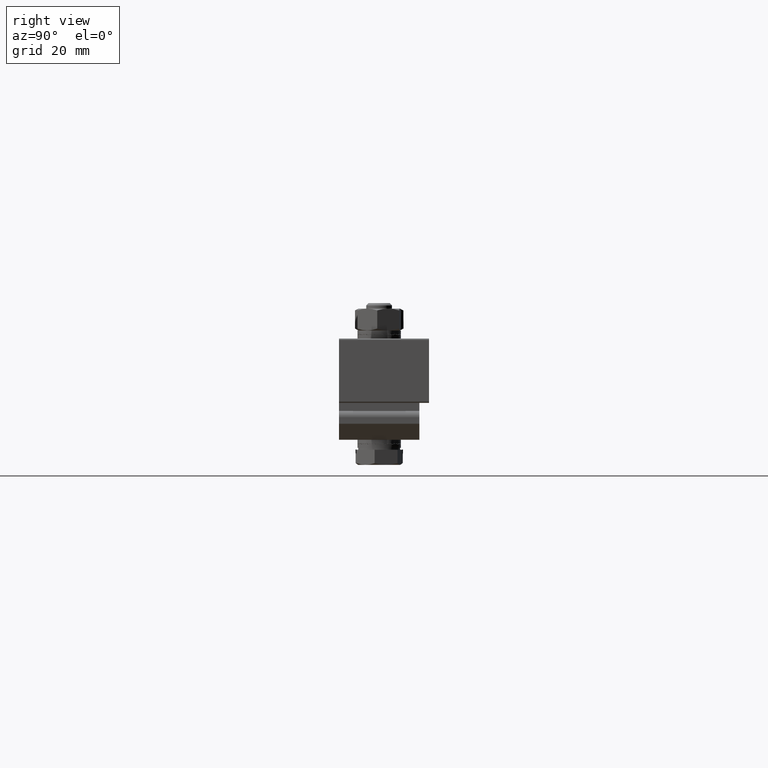
[diagram: clean part render]
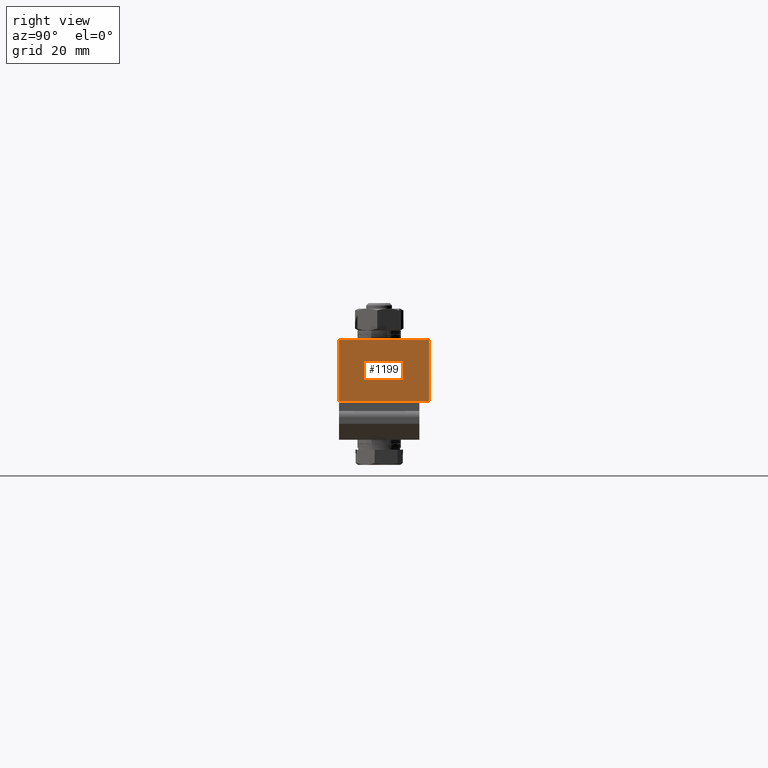
[diagram: same view with one face highlighted and labeled with its STEP entity id]
A machine part, right view. The second image highlights one B-rep face of the part: STEP entity #1199.
In plain terms, the highlighted planar face has unit normal (-1, 0, 0).
Its self-contained STEP definition (entity closure, byte-faithful):
#325 = VERTEX_POINT ( 'NONE', #6448 ) ;
#466 = LINE ( 'NONE', #8624, #9668 ) ;
#843 = CARTESIAN_POINT ( 'NONE',  ( 110.0000000000000000, 15.50000000000000000, 3.000000000000000000 ) ) ;
#984 = EDGE_CURVE ( 'NONE', #11560, #9885, #9301, .T. ) ;
#1097 = EDGE_LOOP ( 'NONE', ( #2235, #20172, #10104, #14325 ) ) ;
#1199 = ADVANCED_FACE ( 'NONE', ( #19142 ), #19918, .F. ) ;
#1359 = LINE ( 'NONE', #12089, #17510 ) ;
#2235 = ORIENTED_EDGE ( 'NONE', *, *, #984, .T. ) ;
#3996 = DIRECTION ( 'NONE',  ( 0.0000000000000000000, 0.0000000000000000000, 1.000000000000000000 ) ) ;
#4177 = VECTOR ( 'NONE', #13008, 1000.000000000000000 ) ;
#4826 = CARTESIAN_POINT ( 'NONE',  ( 110.0000000000000000, -12.50000000000000000, 22.00000000000000000 ) ) ;
#6448 = CARTESIAN_POINT ( 'NONE',  ( 110.0000000000000000, -12.50000000000000000, 3.000000000000000000 ) ) ;
#7870 = LINE ( 'NONE', #843, #11065 ) ;
#8624 = CARTESIAN_POINT ( 'NONE',  ( 110.0000000000000000, -12.50000000000000000, 22.00000000000000000 ) ) ;
#9185 = EDGE_CURVE ( 'NONE', #325, #11211, #1359, .T. ) ;
#9301 = LINE ( 'NONE', #14504, #4177 ) ;
#9605 = EDGE_CURVE ( 'NONE', #325, #11560, #7870, .T. ) ;
#9668 = VECTOR ( 'NONE', #10208, 1000.000000000000000 ) ;
#9885 = VERTEX_POINT ( 'NONE', #10840 ) ;
#10104 = ORIENTED_EDGE ( 'NONE', *, *, #9185, .F. ) ;
#10208 = DIRECTION ( 'NONE',  ( 0.0000000000000000000, -1.000000000000000000, 0.0000000000000000000 ) ) ;
#10840 = CARTESIAN_POINT ( 'NONE',  ( 110.0000000000000000, 15.50000000000000000, 22.00000000000000000 ) ) ;
#11065 = VECTOR ( 'NONE', #17914, 1000.000000000000000 ) ;
#11211 = VERTEX_POINT ( 'NONE', #4826 ) ;
#11560 = VERTEX_POINT ( 'NONE', #19017 ) ;
#12089 = CARTESIAN_POINT ( 'NONE',  ( 110.0000000000000000, -12.50000000000000000, 2.500000000000000000 ) ) ;
#13008 = DIRECTION ( 'NONE',  ( 0.0000000000000000000, 0.0000000000000000000, 1.000000000000000000 ) ) ;
#14325 = ORIENTED_EDGE ( 'NONE', *, *, #9605, .T. ) ;
#14504 = CARTESIAN_POINT ( 'NONE',  ( 110.0000000000000000, 15.50000000000000000, 2.500000000000000000 ) ) ;
#17510 = VECTOR ( 'NONE', #3996, 1000.000000000000000 ) ;
#17914 = DIRECTION ( 'NONE',  ( -0.0000000000000000000, 1.000000000000000000, -0.0000000000000000000 ) ) ;
#18481 = DIRECTION ( 'NONE',  ( -1.000000000000000000, 0.0000000000000000000, 0.0000000000000000000 ) ) ;
#19017 = CARTESIAN_POINT ( 'NONE',  ( 110.0000000000000000, 15.50000000000000000, 3.000000000000000000 ) ) ;
#19142 = FACE_OUTER_BOUND ( 'NONE', #1097, .T. ) ;
#19227 = AXIS2_PLACEMENT_3D ( 'NONE', #19987, #18481, #20051 ) ;
#19356 = EDGE_CURVE ( 'NONE', #9885, #11211, #466, .T. ) ;
#19918 = PLANE ( 'NONE',  #19227 ) ;
#19987 = CARTESIAN_POINT ( 'NONE',  ( 110.0000000000000000, -12.50000000000000000, 2.500000000000000000 ) ) ;
#20051 = DIRECTION ( 'NONE',  ( 0.0000000000000000000, 0.0000000000000000000, -1.000000000000000000 ) ) ;
#20172 = ORIENTED_EDGE ( 'NONE', *, *, #19356, .T. ) ;